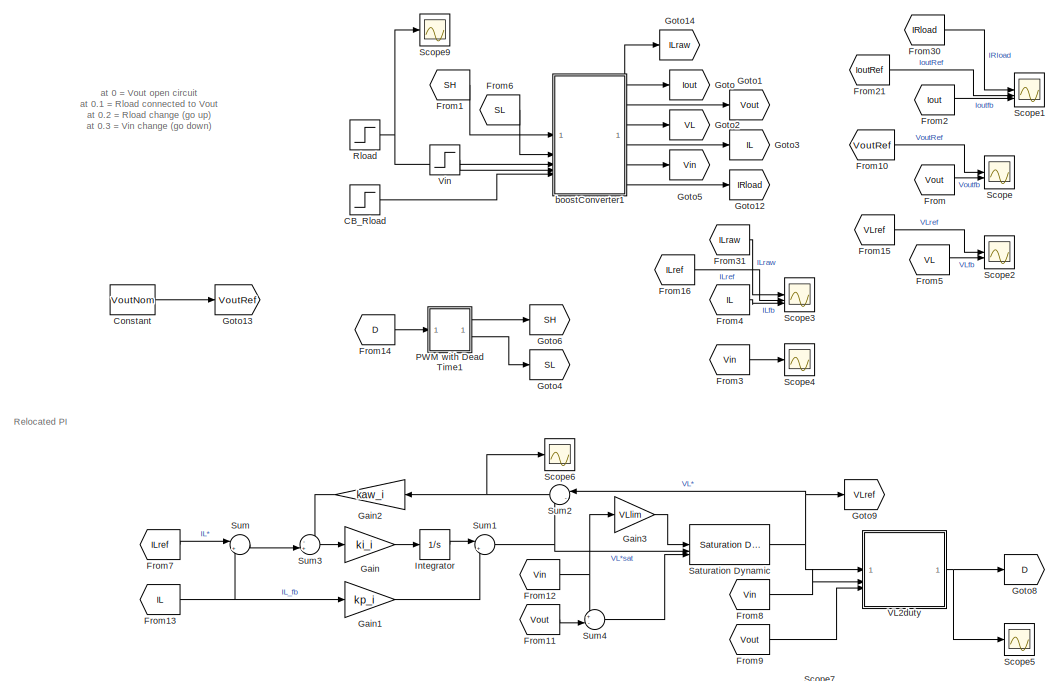
[diagram: root canvas - part 1/4, top left region]
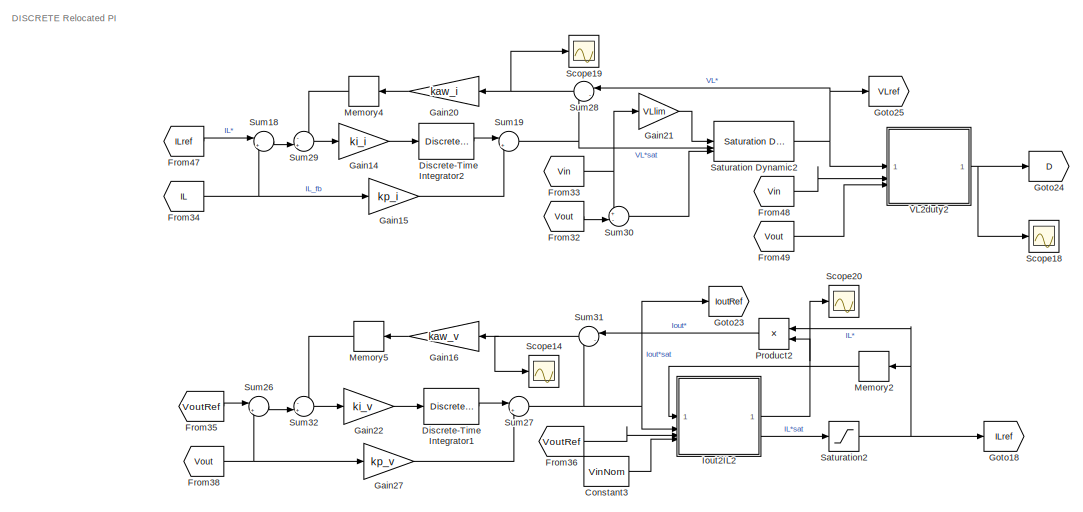
[diagram: root canvas - part 2/4, middle right region]
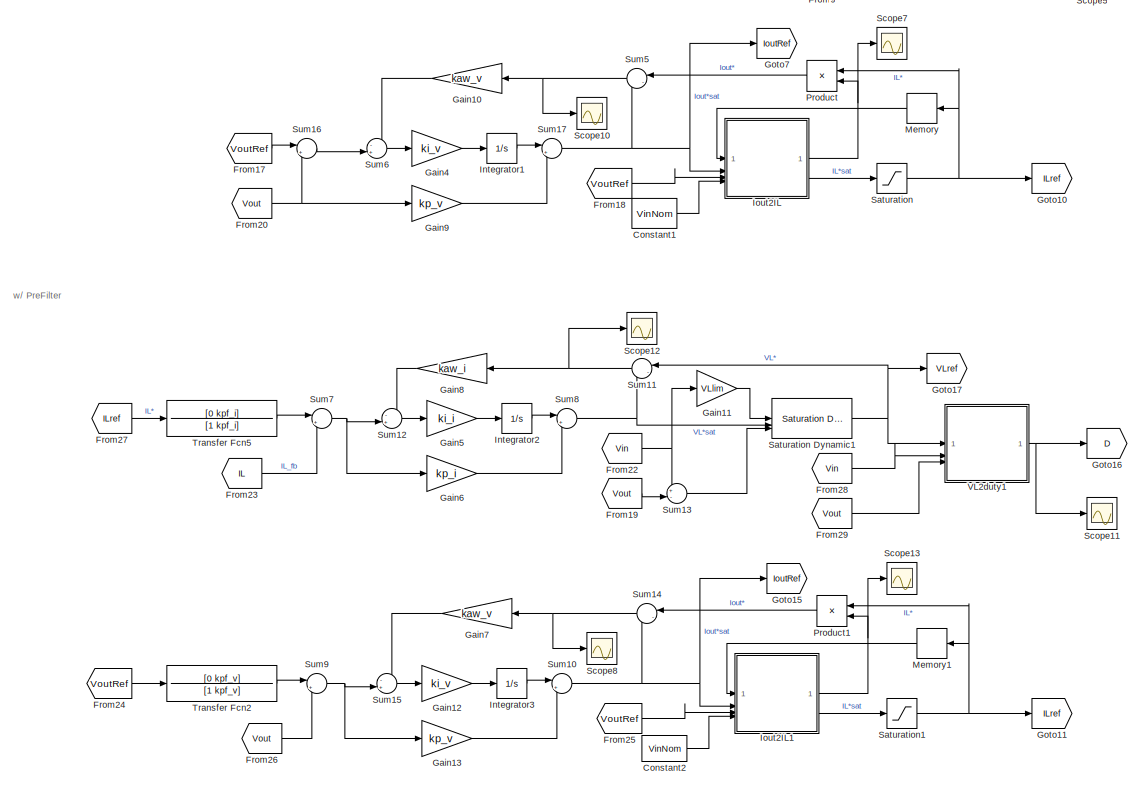
[diagram: root canvas - part 3/4, bottom left region]
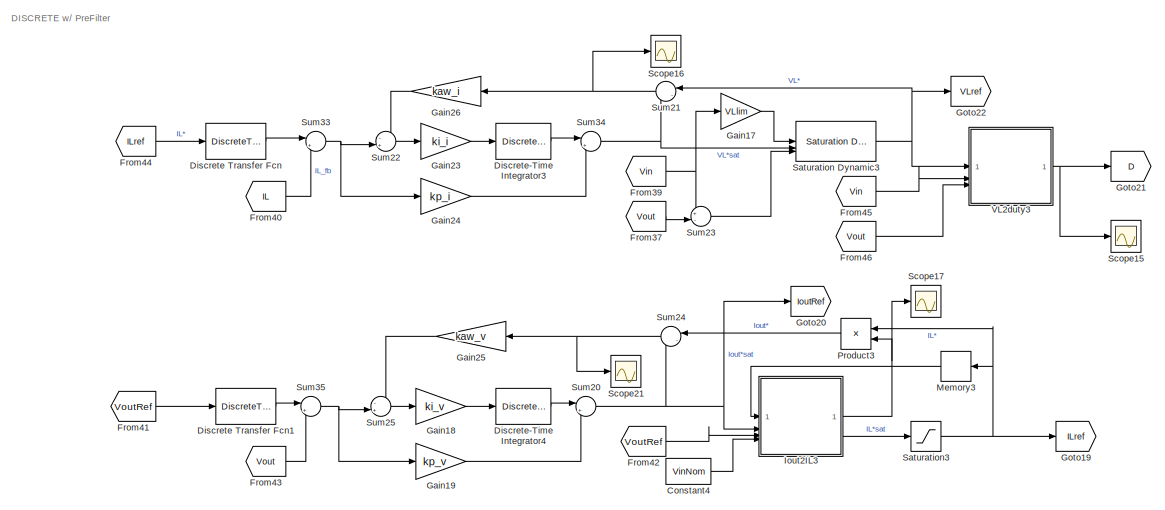
[diagram: root canvas - part 4/4, bottom right region]
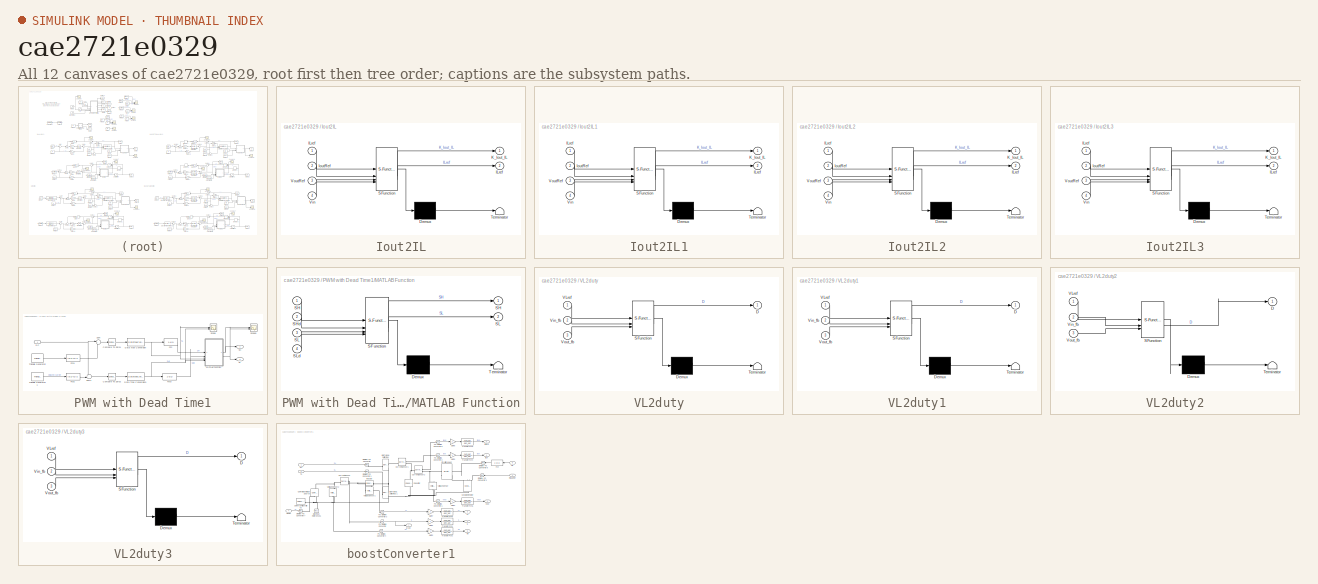
[diagram: thumbnail index - all 12 canvases of the model, root first then tree order]
MODEL slx_cae2721e0329
KIND model
CONFIG AbsTol = auto
CONFIG EnableMultiTasking = off
CONFIG FixedStep = Tstep
CONFIG MaxStep = auto
CONFIG MinStep = auto
CONFIG RelTol = 1e-3
CONFIG SampleTimeConstraint = Unconstrained
CONFIG SolverName = VariableStepAuto
CONFIG StartTime = 0.0
CONFIG StopTime = Tsim_outLoop
BLOCK [Step] CB_Rload
  SampleTime = 0
  Time = 0.1
BLOCK [Constant] Constant
  Value = VoutNom
BLOCK [Constant] Constant1
  Commented = on
  Value = VinNom
BLOCK [Constant] Constant2
  Commented = on
  Value = VinNom
BLOCK [Constant] Constant3
  Value = VinNom
BLOCK [Constant] Constant4
  Commented = on
  Value = VinNom
BLOCK [DiscreteTransferFcn] Discrete Transfer Fcn
  Commented = on
  Denominator = zden_pf_i
  InputPortMap = u0
  Numerator = znum_pf_i
BLOCK [DiscreteTransferFcn] Discrete Transfer Fcn1
  Commented = on
  Denominator = zden_pf_v
  InputPortMap = u0
  Numerator = znum_pf_v
BLOCK [DiscreteIntegrator] Discrete-Time Integrator1
  ICPrevOutput = DiscIntNeverNeededParam
  ICPrevScaledInput = DiscIntNeverNeededParam
  InitialConditionSetting = Auto
  IntegratorMethod = Integration: Trapezoidal
  SampleTime = Tsw
BLOCK [DiscreteIntegrator] Discrete-Time Integrator2
  ICPrevOutput = DiscIntNeverNeededParam
  ICPrevScaledInput = DiscIntNeverNeededParam
  InitialConditionSetting = Auto
  IntegratorMethod = Integration: Trapezoidal
  SampleTime = Tsw
BLOCK [DiscreteIntegrator] Discrete-Time Integrator3
  Commented = on
  ICPrevOutput = DiscIntNeverNeededParam
  ICPrevScaledInput = DiscIntNeverNeededParam
  InitialConditionSetting = Auto
  IntegratorMethod = Integration: Trapezoidal
  SampleTime = Tsw
BLOCK [DiscreteIntegrator] Discrete-Time Integrator4
  Commented = on
  ICPrevOutput = DiscIntNeverNeededParam
  ICPrevScaledInput = DiscIntNeverNeededParam
  InitialConditionSetting = Auto
  IntegratorMethod = Integration: Trapezoidal
  SampleTime = Tsw
BLOCK [From] From
  GotoTag = Vout
BLOCK [From] From1
  GotoTag = SH
BLOCK [From] From10
  GotoTag = VoutRef
BLOCK [From] From11
  Commented = on
  GotoTag = Vout
BLOCK [From] From12
  Commented = on
  GotoTag = Vin
BLOCK [From] From13
  Commented = on
  GotoTag = IL
BLOCK [From] From14
  GotoTag = D
BLOCK [From] From15
  GotoTag = VLref
BLOCK [From] From16
  GotoTag = ILref
BLOCK [From] From17
  Commented = on
  GotoTag = VoutRef
BLOCK [From] From18
  Commented = on
  GotoTag = VoutRef
BLOCK [From] From19
  Commented = on
  GotoTag = Vout
BLOCK [From] From2
  GotoTag = Iout
BLOCK [From] From20
  Commented = on
  GotoTag = Vout
BLOCK [From] From21
  GotoTag = IoutRef
BLOCK [From] From22
  Commented = on
  GotoTag = Vin
BLOCK [From] From23
  Commented = on
  GotoTag = IL
BLOCK [From] From24
  Commented = on
  GotoTag = VoutRef
BLOCK [From] From25
  Commented = on
  GotoTag = VoutRef
BLOCK [From] From26
  Commented = on
  GotoTag = Vout
BLOCK [From] From27
  Commented = on
  GotoTag = ILref
BLOCK [From] From28
  Commented = on
  GotoTag = Vin
BLOCK [From] From29
  Commented = on
  GotoTag = Vout
BLOCK [From] From3
  GotoTag = Vin
BLOCK [From] From30
  GotoTag = IRload
BLOCK [From] From31
  GotoTag = ILraw
BLOCK [From] From32
  GotoTag = Vout
BLOCK [From] From33
  GotoTag = Vin
BLOCK [From] From34
  GotoTag = IL
BLOCK [From] From35
  GotoTag = VoutRef
BLOCK [From] From36
  GotoTag = VoutRef
BLOCK [From] From37
  Commented = on
  GotoTag = Vout
BLOCK [From] From38
  GotoTag = Vout
BLOCK [From] From39
  Commented = on
  GotoTag = Vin
BLOCK [From] From4
  GotoTag = IL
BLOCK [From] From40
  Commented = on
  GotoTag = IL
BLOCK [From] From41
  Commented = on
  GotoTag = VoutRef
BLOCK [From] From42
  Commented = on
  GotoTag = VoutRef
BLOCK [From] From43
  Commented = on
  GotoTag = Vout
BLOCK [From] From44
  Commented = on
  GotoTag = ILref
BLOCK [From] From45
  Commented = on
  GotoTag = Vin
BLOCK [From] From46
  Commented = on
  GotoTag = Vout
BLOCK [From] From47
  GotoTag = ILref
BLOCK [From] From48
  GotoTag = Vin
BLOCK [From] From49
  GotoTag = Vout
BLOCK [From] From5
  GotoTag = VL
BLOCK [From] From6
  GotoTag = SL
BLOCK [From] From7
  Commented = on
  GotoTag = ILref
BLOCK [From] From8
  Commented = on
  GotoTag = Vin
BLOCK [From] From9
  Commented = on
  GotoTag = Vout
BLOCK [Gain] Gain
  Commented = on
  Gain = ki_i
BLOCK [Gain] Gain1
  Commented = on
  Gain = kp_i
BLOCK [Gain] Gain10
  Commented = on
  Gain = kaw_v
  NameLocation = top
BLOCK [Gain] Gain11
  Commented = on
  Gain = VLlim
BLOCK [Gain] Gain12
  Commented = on
  Gain = ki_v
BLOCK [Gain] Gain13
  Commented = on
  Gain = kp_v
BLOCK [Gain] Gain14
  Gain = ki_i
BLOCK [Gain] Gain15
  Gain = kp_i
BLOCK [Gain] Gain16
  Gain = kaw_v
  NameLocation = top
BLOCK [Gain] Gain17
  Commented = on
  Gain = VLlim
BLOCK [Gain] Gain18
  Commented = on
  Gain = ki_v
BLOCK [Gain] Gain19
  Commented = on
  Gain = kp_v
BLOCK [Gain] Gain2
  Commented = on
  Gain = kaw_i
  NameLocation = top
BLOCK [Gain] Gain20
  Gain = kaw_i
  NameLocation = top
BLOCK [Gain] Gain21
  Gain = VLlim
BLOCK [Gain] Gain22
  Gain = ki_v
BLOCK [Gain] Gain23
  Commented = on
  Gain = ki_i
BLOCK [Gain] Gain24
  Commented = on
  Gain = kp_i
BLOCK [Gain] Gain25
  Commented = on
  Gain = kaw_v
  NameLocation = top
BLOCK [Gain] Gain26
  Commented = on
  Gain = kaw_i
  NameLocation = top
BLOCK [Gain] Gain27
  Gain = kp_v
BLOCK [Gain] Gain3
  Commented = on
  Gain = VLlim
BLOCK [Gain] Gain4
  Commented = on
  Gain = ki_v
BLOCK [Gain] Gain5
  Commented = on
  Gain = ki_i
BLOCK [Gain] Gain6
  Commented = on
  Gain = kp_i
BLOCK [Gain] Gain7
  Commented = on
  Gain = kaw_v
  NameLocation = top
BLOCK [Gain] Gain8
  Commented = on
  Gain = kaw_i
  NameLocation = top
BLOCK [Gain] Gain9
  Commented = on
  Gain = kp_v
BLOCK [Goto] Goto
  GotoTag = Iout
BLOCK [Goto] Goto1
  GotoTag = Vout
BLOCK [Goto] Goto10
  Commented = on
  GotoTag = ILref
BLOCK [Goto] Goto11
  Commented = on
  GotoTag = ILref
BLOCK [Goto] Goto12
  GotoTag = IRload
BLOCK [Goto] Goto13
  GotoTag = VoutRef
BLOCK [Goto] Goto14
  GotoTag = ILraw
BLOCK [Goto] Goto15
  Commented = on
  GotoTag = IoutRef
BLOCK [Goto] Goto16
  Commented = on
  GotoTag = D
BLOCK [Goto] Goto17
  Commented = on
  GotoTag = VLref
BLOCK [Goto] Goto18
  GotoTag = ILref
BLOCK [Goto] Goto19
  Commented = on
  GotoTag = ILref
BLOCK [Goto] Goto2
  GotoTag = VL
BLOCK [Goto] Goto20
  Commented = on
  GotoTag = IoutRef
BLOCK [Goto] Goto21
  Commented = on
  GotoTag = D
BLOCK [Goto] Goto22
  Commented = on
  GotoTag = VLref
BLOCK [Goto] Goto23
  GotoTag = IoutRef
BLOCK [Goto] Goto24
  GotoTag = D
BLOCK [Goto] Goto25
  GotoTag = VLref
BLOCK [Goto] Goto3
  GotoTag = IL
BLOCK [Goto] Goto4
  GotoTag = SL
BLOCK [Goto] Goto5
  GotoTag = Vin
BLOCK [Goto] Goto6
  GotoTag = SH
BLOCK [Goto] Goto7
  Commented = on
  GotoTag = IoutRef
BLOCK [Goto] Goto8
  Commented = on
  GotoTag = D
BLOCK [Goto] Goto9
  Commented = on
  GotoTag = VLref
BLOCK [Integrator] Integrator
  Commented = on
BLOCK [Integrator] Integrator1
  Commented = on
BLOCK [Integrator] Integrator2
  Commented = on
BLOCK [Integrator] Integrator3
  Commented = on
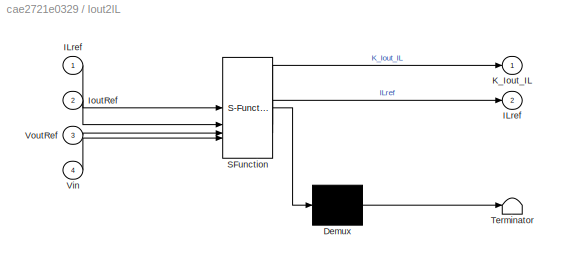
BLOCK [SubSystem] Iout2IL
  Commented = on
  ErrorFcn = Stateflow.Translate.translate
  PermitHierarchicalResolution = ExplicitOnly
  SFBlockType = MATLAB Function
  TreatAsAtomicUnit = on
BLOCK [Demux] Iout2IL/ Demux 
  Outputs = 1
BLOCK [S-Function] Iout2IL/ SFunction 
  EnableBusSupport = off
  FunctionName = sf_sfun
  Parameters = RserL
  PortCounts = [4 3]
  SFcnIsStateOwnerBlock = off
  SFunctionDeploymentMode = off
  Tag = Stateflow S-Function 3
BLOCK [Terminator] Iout2IL/ Terminator 
BLOCK [Outport] Iout2IL/ILref
  Port = 2
  VectorParamsAs1DForOutWhenUnconnected = off
BLOCK [Inport] Iout2IL/ILref 
BLOCK [Inport] Iout2IL/IoutRef
  Port = 2
BLOCK [Outport] Iout2IL/K_Iout_IL
  VectorParamsAs1DForOutWhenUnconnected = off
BLOCK [Inport] Iout2IL/Vin
  Port = 4
BLOCK [Inport] Iout2IL/VoutRef
  Port = 3
BLOCK [SubSystem] Iout2IL1
  Commented = on
  ErrorFcn = Stateflow.Translate.translate
  PermitHierarchicalResolution = ExplicitOnly
  SFBlockType = MATLAB Function
  TreatAsAtomicUnit = on
BLOCK [Demux] Iout2IL1/ Demux 
  Outputs = 1
BLOCK [S-Function] Iout2IL1/ SFunction 
  EnableBusSupport = on
  FunctionName = sf_sfun
  Parameters = RserL
  PortCounts = [4 3]
  SFcnIsStateOwnerBlock = off
  SFunctionDeploymentMode = off
  Tag = Stateflow S-Function 4
BLOCK [Terminator] Iout2IL1/ Terminator 
BLOCK [Outport] Iout2IL1/ILref
  Port = 2
  VectorParamsAs1DForOutWhenUnconnected = off
BLOCK [Inport] Iout2IL1/ILref 
BLOCK [Inport] Iout2IL1/IoutRef
  Port = 2
BLOCK [Outport] Iout2IL1/K_Iout_IL
  VectorParamsAs1DForOutWhenUnconnected = off
BLOCK [Inport] Iout2IL1/Vin
  Port = 4
BLOCK [Inport] Iout2IL1/VoutRef
  Port = 3
BLOCK [SubSystem] Iout2IL2
  ErrorFcn = Stateflow.Translate.translate
  PermitHierarchicalResolution = ExplicitOnly
  SFBlockType = MATLAB Function
  TreatAsAtomicUnit = on
BLOCK [Demux] Iout2IL2/ Demux 
  Outputs = 1
BLOCK [S-Function] Iout2IL2/ SFunction 
  EnableBusSupport = on
  FunctionName = sf_sfun
  Parameters = RserL
  PortCounts = [4 3]
  SFcnIsStateOwnerBlock = off
  SFunctionDeploymentMode = off
  Tag = Stateflow S-Function 6
BLOCK [Terminator] Iout2IL2/ Terminator 
BLOCK [Outport] Iout2IL2/ILref
  Port = 2
  VectorParamsAs1DForOutWhenUnconnected = off
BLOCK [Inport] Iout2IL2/ILref 
BLOCK [Inport] Iout2IL2/IoutRef
  Port = 2
BLOCK [Outport] Iout2IL2/K_Iout_IL
  VectorParamsAs1DForOutWhenUnconnected = off
BLOCK [Inport] Iout2IL2/Vin
  Port = 4
BLOCK [Inport] Iout2IL2/VoutRef
  Port = 3
BLOCK [SubSystem] Iout2IL3
  Commented = on
  ErrorFcn = Stateflow.Translate.translate
  PermitHierarchicalResolution = ExplicitOnly
  SFBlockType = MATLAB Function
  TreatAsAtomicUnit = on
BLOCK [Demux] Iout2IL3/ Demux 
  Outputs = 1
BLOCK [S-Function] Iout2IL3/ SFunction 
  EnableBusSupport = on
  FunctionName = sf_sfun
  Parameters = RserL
  PortCounts = [4 3]
  SFcnIsStateOwnerBlock = off
  SFunctionDeploymentMode = off
  Tag = Stateflow S-Function 7
BLOCK [Terminator] Iout2IL3/ Terminator 
BLOCK [Outport] Iout2IL3/ILref
  Port = 2
  VectorParamsAs1DForOutWhenUnconnected = off
BLOCK [Inport] Iout2IL3/ILref 
BLOCK [Inport] Iout2IL3/IoutRef
  Port = 2
BLOCK [Outport] Iout2IL3/K_Iout_IL
  VectorParamsAs1DForOutWhenUnconnected = off
BLOCK [Inport] Iout2IL3/Vin
  Port = 4
BLOCK [Inport] Iout2IL3/VoutRef
  Port = 3
BLOCK [Memory] Memory
  Commented = on
  NameLocation = top
BLOCK [Memory] Memory1
  Commented = on
  NameLocation = top
BLOCK [Memory] Memory2
  NameLocation = top
BLOCK [Memory] Memory3
  Commented = on
  NameLocation = top
BLOCK [Memory] Memory4
  NameLocation = top
BLOCK [Memory] Memory5
  NameLocation = top
BLOCK [SubSystem] PWM with Dead Time1
BLOCK [Reference] PWM with Dead Time1/Compare To Zero1  REF=simulink/Logic and Bit
Operations/Compare
To Zero
  SourceBlock = simulink/Logic and Bit\nOperations/Compare\nTo Zero
  SourceType = Compare To Zero
BLOCK [Reference] PWM with Dead Time1/Compare To Zero2  REF=simulink/Logic and Bit
Operations/Compare
To Zero
  SourceBlock = simulink/Logic and Bit\nOperations/Compare\nTo Zero
  SourceType = Compare To Zero
BLOCK [Inport] PWM with Dead Time1/DC
BLOCK [DataTypeConversion] PWM with Dead Time1/Data Type Conversion
  RndMeth = Floor
  SaturateOnIntegerOverflow = off
BLOCK [DataTypeConversion] PWM with Dead Time1/Data Type Conversion1
  RndMeth = Floor
  SaturateOnIntegerOverflow = off
BLOCK [Fcn] PWM with Dead Time1/Fcn
  Expr = 1-u(1)
BLOCK [Fcn] PWM with Dead Time1/Fcn1
  Expr = (u(1)+1)/2
BLOCK [Fcn] PWM with Dead Time1/Fcn2
  Expr = (u(1)+1)/2
BLOCK [Fcn] PWM with Dead Time1/Fcn3
  Expr = 1-u(1)
BLOCK [SubSystem] PWM with Dead Time1/MATLAB Function
  ErrorFcn = Stateflow.Translate.translate
  PermitHierarchicalResolution = ExplicitOnly
  SFBlockType = MATLAB Function
  TreatAsAtomicUnit = on
BLOCK [Demux] PWM with Dead Time1/MATLAB Function/ Demux 
  Outputs = 1
BLOCK [S-Function] PWM with Dead Time1/MATLAB Function/ SFunction 
  EnableBusSupport = on
  FunctionName = sf_sfun
  PortCounts = [4 3]
  SFcnIsStateOwnerBlock = off
  SFunctionDeploymentMode = off
  Tag = Stateflow S-Function 2
BLOCK [Terminator] PWM with Dead Time1/MATLAB Function/ Terminator 
BLOCK [Outport] PWM with Dead Time1/MATLAB Function/SH
BLOCK [Inport] PWM with Dead Time1/MATLAB Function/SH 
BLOCK [Inport] PWM with Dead Time1/MATLAB Function/SHd
  Port = 2
BLOCK [Outport] PWM with Dead Time1/MATLAB Function/SL
  Port = 2
BLOCK [Inport] PWM with Dead Time1/MATLAB Function/SL 
  Port = 3
BLOCK [Inport] PWM with Dead Time1/MATLAB Function/SLd
  Port = 4
BLOCK [Outport] PWM with Dead Time1/SH
BLOCK [Outport] PWM with Dead Time1/SL
  Port = 2
BLOCK [Scope] PWM with Dead Time1/Scope
  Floating = off
  NameLocation = left
  NumInputPorts = 2
  ScopeSpecificationString = Simulink.scopes.TimeScopeBlockCfg('CurrentConfiguration', extmgr.ConfigurationSet(extmgr.Configuration('Core','General UI',true),extmgr.Configuration('Core','Source UI',true),extmgr.Configuration('Sources','WiredSimulink',true,'DataLoggingVariableName','ScopeData1'),extmgr.Configuration('Visuals','Time Domain',true,'SerializedDisplays',{struct('MinYLimReal','-0.125','MaxYLimReal','1.125','YLabelRe...<+1399ch>
BLOCK [Scope] PWM with Dead Time1/Scope5
  Floating = off
  NumInputPorts = 2
  ScopeSpecificationString = Simulink.scopes.TimeScopeBlockCfg('CurrentConfiguration', extmgr.ConfigurationSet(extmgr.Configuration('Core','General UI',true),extmgr.Configuration('Core','Source UI',true),extmgr.Configuration('Sources','WiredSimulink',true,'DataLoggingVariableName','ScopeData1'),extmgr.Configuration('Visuals','Time Domain',true,'SerializedDisplays',{struct('MinYLimReal','-0.125','MaxYLimReal','1.125','YLabelRe...<+1482ch>
BLOCK [Sum] PWM with Dead Time1/Sum
  Inputs = |+-
BLOCK [Sum] PWM with Dead Time1/Sum1
  Inputs = +-|
BLOCK [Reference] PWM with Dead Time1/Triangle Generator  REF=spsTriangleGeneratorLib/Triangle
Generator
  LibrarySourceBlock = sps_lib/Sources/Signal Generator Sources/Triangle\nGenerator
  SourceBlock = spsTriangleGeneratorLib/Triangle\nGenerator
  SourceType = Triangle Generator
BLOCK [Reference] PWM with Dead Time1/Triangle Generator1  REF=spsTriangleGeneratorLib/Triangle
Generator
  LibrarySourceBlock = sps_lib/Sources/Signal Generator Sources/Triangle\nGenerator
  SourceBlock = spsTriangleGeneratorLib/Triangle\nGenerator
  SourceType = Triangle Generator
BLOCK [Product] Product
  Commented = on
  NameLocation = top
BLOCK [Product] Product1
  Commented = on
  NameLocation = top
BLOCK [Product] Product2
  NameLocation = top
BLOCK [Product] Product3
  Commented = on
  NameLocation = top
BLOCK [Step] Rload
  After = Rload*2
  Before = Rload
  SampleTime = 0
  Time = 0.2
BLOCK [Saturate] Saturation
  Commented = on
  LowerLimit = -ILmax
  UpperLimit = ILmax
BLOCK [Reference] Saturation Dynamic  REF=simulink/Discontinuities/Saturation
Dynamic
  Commented = on
  SourceBlock = simulink/Discontinuities/Saturation\nDynamic
  SourceType = Saturation Dynamic
BLOCK [Reference] Saturation Dynamic1  REF=simulink/Discontinuities/Saturation
Dynamic
  Commented = on
  SourceBlock = simulink/Discontinuities/Saturation\nDynamic
  SourceType = Saturation Dynamic
BLOCK [Reference] Saturation Dynamic2  REF=simulink/Discontinuities/Saturation
Dynamic
  SourceBlock = simulink/Discontinuities/Saturation\nDynamic
  SourceType = Saturation Dynamic
BLOCK [Reference] Saturation Dynamic3  REF=simulink/Discontinuities/Saturation
Dynamic
  Commented = on
  SourceBlock = simulink/Discontinuities/Saturation\nDynamic
  SourceType = Saturation Dynamic
BLOCK [Saturate] Saturation1
  Commented = on
  LowerLimit = -ILmax
  UpperLimit = ILmax
BLOCK [Saturate] Saturation2
  LowerLimit = -ILmax
  UpperLimit = ILmax
BLOCK [Saturate] Saturation3
  Commented = on
  LowerLimit = -ILmax
  UpperLimit = ILmax
BLOCK [Scope] Scope
  Floating = off
  NumInputPorts = 2
  ScopeSpecificationString = Simulink.scopes.TimeScopeBlockCfg('CurrentConfiguration', extmgr.ConfigurationSet(extmgr.Configuration('Core','General UI',true),extmgr.Configuration('Core','Source UI',true),extmgr.Configuration('Sources','WiredSimulink',true),extmgr.Configuration('Visuals','Time Domain',true,'SerializedDisplays',{struct('MinYLimReal','-7.11443','MaxYLimReal','64.02988','YLabelReal','','MinYLimMag','0.00000','Max...<+1498ch>
BLOCK [Scope] Scope1
  Floating = off
  NumInputPorts = 3
  ScopeSpecificationString = Simulink.scopes.TimeScopeBlockCfg('CurrentConfiguration', extmgr.ConfigurationSet(extmgr.Configuration('Core','General UI',true),extmgr.Configuration('Core','Source UI',true),extmgr.Configuration('Sources','WiredSimulink',true,'DataLoggingVariableName','ScopeData1'),extmgr.Configuration('Visuals','Time Domain',true,'SerializedDisplays',{struct('MinYLimReal','1.46411','MaxYLimReal','1.55327','YLabe...<+1540ch>
BLOCK [Scope] Scope10
  Commented = on
  Floating = off
  NumInputPorts = 1
  ScopeSpecificationString = Simulink.scopes.TimeScopeBlockCfg('CurrentConfiguration', extmgr.ConfigurationSet(extmgr.Configuration('Core','General UI',true),extmgr.Configuration('Core','Source UI',true),extmgr.Configuration('Sources','WiredSimulink',true,'DataLoggingVariableName','ScopeData4'),extmgr.Configuration('Visuals','Time Domain',true,'SerializedDisplays',{struct('MinYLimReal','-0.0000000000000011','MaxYLimReal','0.0...<+1570ch>
BLOCK [Scope] Scope11
  Commented = on
  Floating = off
  NumInputPorts = 1
  ScopeSpecificationString = Simulink.scopes.TimeScopeBlockCfg('CurrentConfiguration', extmgr.ConfigurationSet(extmgr.Configuration('Core','General UI',true),extmgr.Configuration('Core','Source UI',true),extmgr.Configuration('Sources','WiredSimulink',true,'DataLoggingVariableName','ScopeData1'),extmgr.Configuration('Visuals','Time Domain',true,'SerializedDisplays',{struct('MinYLimReal','-0.05602','MaxYLimReal','0.50414','YLab...<+1392ch>
BLOCK [Scope] Scope12
  Commented = on
  Floating = off
  NumInputPorts = 1
  ScopeSpecificationString = Simulink.scopes.TimeScopeBlockCfg('CurrentConfiguration', extmgr.ConfigurationSet(extmgr.Configuration('Core','General UI',true),extmgr.Configuration('Core','Source UI',true),extmgr.Configuration('Sources','WiredSimulink',true,'DataLoggingVariableName','ScopeData2'),extmgr.Configuration('Visuals','Time Domain',true,'SerializedDisplays',{struct('MinYLimReal','-0.00687','MaxYLimReal','0.06186','YLab...<+1363ch>
BLOCK [Scope] Scope13
  Commented = on
  Floating = off
  NumInputPorts = 1
  ScopeSpecificationString = Simulink.scopes.TimeScopeBlockCfg('CurrentConfiguration', extmgr.ConfigurationSet(extmgr.Configuration('Core','General UI',true),extmgr.Configuration('Core','Source UI',true),extmgr.Configuration('Sources','WiredSimulink',true,'DataLoggingVariableName','ScopeData3'),extmgr.Configuration('Visuals','Time Domain',true,'SerializedDisplays',{struct('MinYLimReal','1.04374','MaxYLimReal','1.64016','YLabe...<+1374ch>
BLOCK [Scope] Scope14
  Floating = off
  NumInputPorts = 1
  ScopeSpecificationString = Simulink.scopes.TimeScopeBlockCfg('CurrentConfiguration', extmgr.ConfigurationSet(extmgr.Configuration('Core','General UI',true),extmgr.Configuration('Core','Source UI',true),extmgr.Configuration('Sources','WiredSimulink',true,'DataLoggingVariableName','ScopeData1'),extmgr.Configuration('Visuals','Time Domain',true,'SerializedDisplays',{struct('MinYLimReal','-0.0000000000000011','MaxYLimReal','0.0...<+1570ch>
BLOCK [Scope] Scope15
  Commented = on
  Floating = off
  NumInputPorts = 1
  ScopeSpecificationString = Simulink.scopes.TimeScopeBlockCfg('CurrentConfiguration', extmgr.ConfigurationSet(extmgr.Configuration('Core','General UI',true),extmgr.Configuration('Core','Source UI',true),extmgr.Configuration('Sources','WiredSimulink',true,'DataLoggingVariableName','ScopeData2'),extmgr.Configuration('Visuals','Time Domain',true,'SerializedDisplays',{struct('MinYLimReal','-0.05602','MaxYLimReal','0.50414','YLab...<+1392ch>
BLOCK [Scope] Scope16
  Commented = on
  Floating = off
  NumInputPorts = 1
  ScopeSpecificationString = Simulink.scopes.TimeScopeBlockCfg('CurrentConfiguration', extmgr.ConfigurationSet(extmgr.Configuration('Core','General UI',true),extmgr.Configuration('Core','Source UI',true),extmgr.Configuration('Sources','WiredSimulink',true,'DataLoggingVariableName','ScopeData3'),extmgr.Configuration('Visuals','Time Domain',true,'SerializedDisplays',{struct('MinYLimReal','-0.00687','MaxYLimReal','0.06186','YLab...<+1363ch>
BLOCK [Scope] Scope17
  Commented = on
  Floating = off
  NumInputPorts = 1
  ScopeSpecificationString = Simulink.scopes.TimeScopeBlockCfg('CurrentConfiguration', extmgr.ConfigurationSet(extmgr.Configuration('Core','General UI',true),extmgr.Configuration('Core','Source UI',true),extmgr.Configuration('Sources','WiredSimulink',true,'DataLoggingVariableName','ScopeData4'),extmgr.Configuration('Visuals','Time Domain',true,'SerializedDisplays',{struct('MinYLimReal','1.04374','MaxYLimReal','1.64016','YLabe...<+1374ch>
BLOCK [Scope] Scope18
  Floating = off
  NumInputPorts = 1
  ScopeSpecificationString = Simulink.scopes.TimeScopeBlockCfg('CurrentConfiguration', extmgr.ConfigurationSet(extmgr.Configuration('Core','General UI',true),extmgr.Configuration('Core','Source UI',true),extmgr.Configuration('Sources','WiredSimulink',true,'DataLoggingVariableName','ScopeData5'),extmgr.Configuration('Visuals','Time Domain',true,'SerializedDisplays',{struct('MinYLimReal','-0.09281','MaxYLimReal','0.83526','YLab...<+1392ch>
BLOCK [Scope] Scope19
  Floating = off
  NumInputPorts = 1
  ScopeSpecificationString = Simulink.scopes.TimeScopeBlockCfg('CurrentConfiguration', extmgr.ConfigurationSet(extmgr.Configuration('Core','General UI',true),extmgr.Configuration('Core','Source UI',true),extmgr.Configuration('Sources','WiredSimulink',true,'DataLoggingVariableName','ScopeData6'),extmgr.Configuration('Visuals','Time Domain',true,'SerializedDisplays',{struct('MinYLimReal','-0.00687','MaxYLimReal','0.06186','YLab...<+1363ch>
BLOCK [Scope] Scope2
  Floating = off
  NumInputPorts = 2
  ScopeSpecificationString = Simulink.scopes.TimeScopeBlockCfg('CurrentConfiguration', extmgr.ConfigurationSet(extmgr.Configuration('Core','General UI',true),extmgr.Configuration('Core','Source UI',true),extmgr.Configuration('Sources','WiredSimulink',true,'DataLoggingVariableName','ScopeData2'),extmgr.Configuration('Visuals','Time Domain',true,'SerializedDisplays',{struct('MinYLimReal','-8.09908','MaxYLimReal','5.80144','YLab...<+1460ch>
BLOCK [Scope] Scope20
  Floating = off
  NumInputPorts = 1
  ScopeSpecificationString = Simulink.scopes.TimeScopeBlockCfg('CurrentConfiguration', extmgr.ConfigurationSet(extmgr.Configuration('Core','General UI',true),extmgr.Configuration('Core','Source UI',true),extmgr.Configuration('Sources','WiredSimulink',true,'DataLoggingVariableName','ScopeData7'),extmgr.Configuration('Visuals','Time Domain',true,'SerializedDisplays',{struct('MinYLimReal','1.04374','MaxYLimReal','1.64016','YLabe...<+1374ch>
BLOCK [Scope] Scope21
  Commented = on
  Floating = off
  NumInputPorts = 1
  ScopeSpecificationString = Simulink.scopes.TimeScopeBlockCfg('CurrentConfiguration', extmgr.ConfigurationSet(extmgr.Configuration('Core','General UI',true),extmgr.Configuration('Core','Source UI',true),extmgr.Configuration('Sources','WiredSimulink',true,'DataLoggingVariableName','ScopeData8'),extmgr.Configuration('Visuals','Time Domain',true,'SerializedDisplays',{struct('MinYLimReal','-0.0000000000000011','MaxYLimReal','0.0...<+1570ch>
BLOCK [Scope] Scope3
  Floating = off
  NumInputPorts = 3
  ScopeSpecificationString = Simulink.scopes.TimeScopeBlockCfg('CurrentConfiguration', extmgr.ConfigurationSet(extmgr.Configuration('Core','General UI',true),extmgr.Configuration('Core','Source UI',true),extmgr.Configuration('Sources','WiredSimulink',true,'DataLoggingVariableName','ScopeData3'),extmgr.Configuration('Visuals','Time Domain',true,'SerializedDisplays',{struct('MinYLimReal','4.74063','MaxYLimReal','5.63244','YLabe...<+1489ch>
BLOCK [Scope] Scope4
  Floating = off
  NumInputPorts = 1
  ScopeSpecificationString = Simulink.scopes.TimeScopeBlockCfg('CurrentConfiguration', extmgr.ConfigurationSet(extmgr.Configuration('Core','General UI',true),extmgr.Configuration('Core','Source UI',true),extmgr.Configuration('Sources','WiredSimulink',true,'DataLoggingVariableName','ScopeData4'),extmgr.Configuration('Visuals','Time Domain',true,'SerializedDisplays',{struct('MinYLimReal','-46.98204','MaxYLimReal','422.83838','Y...<+1374ch>
BLOCK [Scope] Scope5
  Commented = on
  Floating = off
  NumInputPorts = 1
  ScopeSpecificationString = Simulink.scopes.TimeScopeBlockCfg('CurrentConfiguration', extmgr.ConfigurationSet(extmgr.Configuration('Core','General UI',true),extmgr.Configuration('Core','Source UI',true),extmgr.Configuration('Sources','WiredSimulink',true,'DataLoggingVariableName','ScopeData2'),extmgr.Configuration('Visuals','Time Domain',true,'SerializedDisplays',{struct('MinYLimReal','-0.09281','MaxYLimReal','0.83526','YLab...<+1392ch>
BLOCK [Scope] Scope6
  Commented = on
  Floating = off
  NumInputPorts = 1
  ScopeSpecificationString = Simulink.scopes.TimeScopeBlockCfg('CurrentConfiguration', extmgr.ConfigurationSet(extmgr.Configuration('Core','General UI',true),extmgr.Configuration('Core','Source UI',true),extmgr.Configuration('Sources','WiredSimulink',true,'DataLoggingVariableName','ScopeData1'),extmgr.Configuration('Visuals','Time Domain',true,'SerializedDisplays',{struct('MinYLimReal','-0.00687','MaxYLimReal','0.06186','YLab...<+1363ch>
BLOCK [Scope] Scope7
  Commented = on
  Floating = off
  NumInputPorts = 1
  ScopeSpecificationString = Simulink.scopes.TimeScopeBlockCfg('CurrentConfiguration', extmgr.ConfigurationSet(extmgr.Configuration('Core','General UI',true),extmgr.Configuration('Core','Source UI',true),extmgr.Configuration('Sources','WiredSimulink',true,'DataLoggingVariableName','ScopeData3'),extmgr.Configuration('Visuals','Time Domain',true,'SerializedDisplays',{struct('MinYLimReal','1.04374','MaxYLimReal','1.64016','YLabe...<+1374ch>
BLOCK [Scope] Scope8
  Commented = on
  Floating = off
  NumInputPorts = 1
  ScopeSpecificationString = Simulink.scopes.TimeScopeBlockCfg('CurrentConfiguration', extmgr.ConfigurationSet(extmgr.Configuration('Core','General UI',true),extmgr.Configuration('Core','Source UI',true),extmgr.Configuration('Sources','WiredSimulink',true,'DataLoggingVariableName','ScopeData4'),extmgr.Configuration('Visuals','Time Domain',true,'SerializedDisplays',{struct('MinYLimReal','-0.0000000000000011','MaxYLimReal','0.0...<+1570ch>
BLOCK [Scope] Scope9
  Floating = off
  NumInputPorts = 1
  ScopeSpecificationString = Simulink.scopes.TimeScopeBlockCfg('CurrentConfiguration', extmgr.ConfigurationSet(extmgr.Configuration('Core','General UI',true),extmgr.Configuration('Core','Source UI',true),extmgr.Configuration('Sources','WiredSimulink',true,'DataLoggingVariableName','ScopeData2'),extmgr.Configuration('Visuals','Time Domain',true,'SerializedDisplays',{struct('MinYLimReal','93.16406','MaxYLimReal','145.89844','YL...<+1374ch>
BLOCK [Sum] Sum
  Commented = on
  Inputs = |+-
BLOCK [Sum] Sum1
  Commented = on
  Inputs = |+-
BLOCK [Sum] Sum10
  Commented = on
  Inputs = |++
BLOCK [Sum] Sum11
  Commented = on
  Inputs = |-+
  NameLocation = top
BLOCK [Sum] Sum12
  Commented = on
  Inputs = -+|
BLOCK [Sum] Sum13
  Commented = on
  Inputs = +-|
BLOCK [Sum] Sum14
  Commented = on
  Inputs = |-+
  NameLocation = top
BLOCK [Sum] Sum15
  Commented = on
  Inputs = -+|
BLOCK [Sum] Sum16
  Commented = on
  Inputs = |+-
BLOCK [Sum] Sum17
  Commented = on
  Inputs = |+-
BLOCK [Sum] Sum18
  Inputs = |+-
BLOCK [Sum] Sum19
  Inputs = |+-
BLOCK [Sum] Sum2
  Commented = on
  Inputs = |-+
  NameLocation = top
BLOCK [Sum] Sum20
  Commented = on
  Inputs = |++
BLOCK [Sum] Sum21
  Commented = on
  Inputs = |-+
  NameLocation = top
BLOCK [Sum] Sum22
  Commented = on
  Inputs = -+|
BLOCK [Sum] Sum23
  Commented = on
  Inputs = +-|
BLOCK [Sum] Sum24
  Commented = on
  Inputs = |-+
  NameLocation = top
BLOCK [Sum] Sum25
  Commented = on
  Inputs = -+|
BLOCK [Sum] Sum26
  Inputs = |+-
BLOCK [Sum] Sum27
  Inputs = |+-
BLOCK [Sum] Sum28
  Inputs = |-+
  NameLocation = top
BLOCK [Sum] Sum29
  Inputs = -+|
BLOCK [Sum] Sum3
  Commented = on
  Inputs = -+|
BLOCK [Sum] Sum30
  Inputs = +-|
BLOCK [Sum] Sum31
  Inputs = |-+
  NameLocation = top
BLOCK [Sum] Sum32
  Inputs = -+|
BLOCK [Sum] Sum33
  Commented = on
  Inputs = |+-
BLOCK [Sum] Sum34
  Commented = on
  Inputs = |++
BLOCK [Sum] Sum35
  Commented = on
  Inputs = |+-
BLOCK [Sum] Sum4
  Commented = on
  Inputs = +-|
BLOCK [Sum] Sum5
  Commented = on
  Inputs = |-+
  NameLocation = top
BLOCK [Sum] Sum6
  Commented = on
  Inputs = -+|
BLOCK [Sum] Sum7
  Commented = on
  Inputs = |+-
BLOCK [Sum] Sum8
  Commented = on
  Inputs = |++
BLOCK [Sum] Sum9
  Commented = on
  Inputs = |+-
BLOCK [TransferFcn] Transfer Fcn2
  Commented = on
  Denominator = [1 kpf_v]
  Numerator = [0 kpf_v]
BLOCK [TransferFcn] Transfer Fcn5
  Commented = on
  Denominator = [1 kpf_i]
  Numerator = [0 kpf_i]
BLOCK [SubSystem] VL2duty
  Commented = on
  ErrorFcn = Stateflow.Translate.translate
  PermitHierarchicalResolution = ExplicitOnly
  SFBlockType = MATLAB Function
  TreatAsAtomicUnit = on
BLOCK [Demux] VL2duty/ Demux 
  Outputs = 1
BLOCK [S-Function] VL2duty/ SFunction 
  EnableBusSupport = off
  FunctionName = sf_sfun
  PortCounts = [3 2]
  SFcnIsStateOwnerBlock = off
  SFunctionDeploymentMode = off
  Tag = Stateflow S-Function 1
BLOCK [Terminator] VL2duty/ Terminator 
BLOCK [Outport] VL2duty/D
  VectorParamsAs1DForOutWhenUnconnected = off
BLOCK [Inport] VL2duty/VLref
BLOCK [Inport] VL2duty/Vin_fb
  Port = 2
BLOCK [Inport] VL2duty/Vout_fb
  Port = 3
BLOCK [SubSystem] VL2duty1
  Commented = on
  ErrorFcn = Stateflow.Translate.translate
  PermitHierarchicalResolution = ExplicitOnly
  SFBlockType = MATLAB Function
  TreatAsAtomicUnit = on
BLOCK [Demux] VL2duty1/ Demux 
  Outputs = 1
BLOCK [S-Function] VL2duty1/ SFunction 
  EnableBusSupport = on
  FunctionName = sf_sfun
  PortCounts = [3 2]
  SFcnIsStateOwnerBlock = off
  SFunctionDeploymentMode = off
  Tag = Stateflow S-Function 5
BLOCK [Terminator] VL2duty1/ Terminator 
BLOCK [Outport] VL2duty1/D
  VectorParamsAs1DForOutWhenUnconnected = off
BLOCK [Inport] VL2duty1/VLref
BLOCK [Inport] VL2duty1/Vin_fb
  Port = 2
BLOCK [Inport] VL2duty1/Vout_fb
  Port = 3
BLOCK [SubSystem] VL2duty2
  ErrorFcn = Stateflow.Translate.translate
  PermitHierarchicalResolution = ExplicitOnly
  SFBlockType = MATLAB Function
  TreatAsAtomicUnit = on
BLOCK [Demux] VL2duty2/ Demux 
  Outputs = 1
BLOCK [S-Function] VL2duty2/ SFunction 
  EnableBusSupport = on
  FunctionName = sf_sfun
  PortCounts = [3 2]
  SFcnIsStateOwnerBlock = off
  SFunctionDeploymentMode = off
  Tag = Stateflow S-Function 8
BLOCK [Terminator] VL2duty2/ Terminator 
BLOCK [Outport] VL2duty2/D
  VectorParamsAs1DForOutWhenUnconnected = off
BLOCK [Inport] VL2duty2/VLref
BLOCK [Inport] VL2duty2/Vin_fb
  Port = 2
BLOCK [Inport] VL2duty2/Vout_fb
  Port = 3
BLOCK [SubSystem] VL2duty3
  Commented = on
  ErrorFcn = Stateflow.Translate.translate
  PermitHierarchicalResolution = ExplicitOnly
  SFBlockType = MATLAB Function
  TreatAsAtomicUnit = on
BLOCK [Demux] VL2duty3/ Demux 
  Outputs = 1
BLOCK [S-Function] VL2duty3/ SFunction 
  EnableBusSupport = on
  FunctionName = sf_sfun
  PortCounts = [3 2]
  SFcnIsStateOwnerBlock = off
  SFunctionDeploymentMode = off
  Tag = Stateflow S-Function 9
BLOCK [Terminator] VL2duty3/ Terminator 
BLOCK [Outport] VL2duty3/D
  VectorParamsAs1DForOutWhenUnconnected = off
BLOCK [Inport] VL2duty3/VLref
BLOCK [Inport] VL2duty3/Vin_fb
  Port = 2
BLOCK [Inport] VL2duty3/Vout_fb
  Port = 3
BLOCK [Step] Vin
  After = 20
  Before = VinNom
  SampleTime = 0
  Time = 0.3
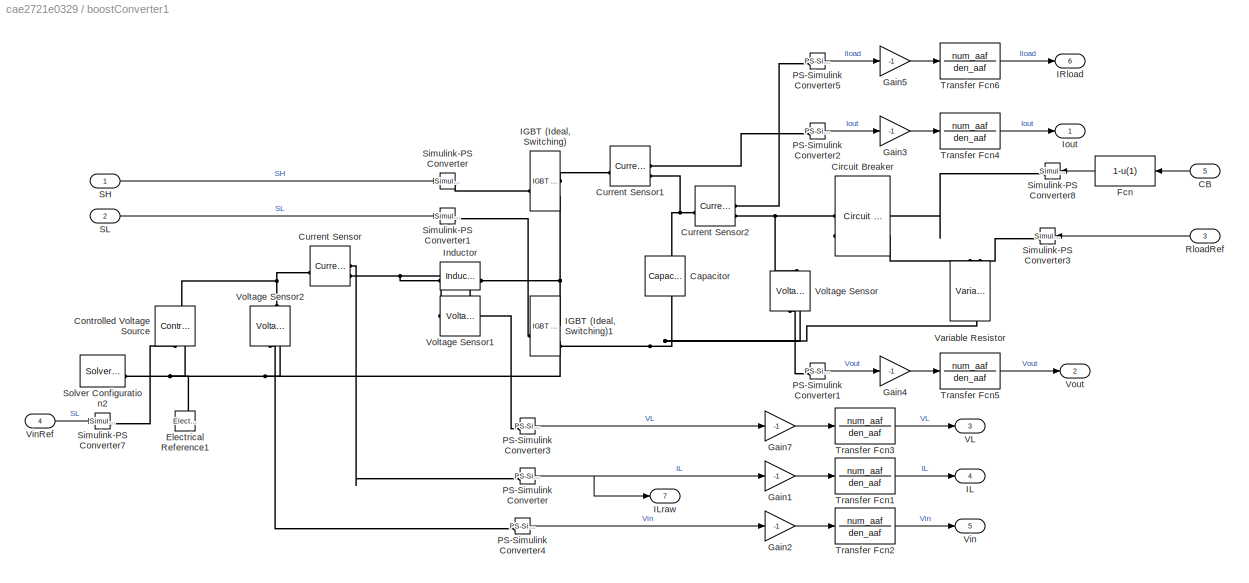
BLOCK [SubSystem] boostConverter1
  PortSchema = {"entries":[{"content":{"sides":[{"content":{"connectorIds":["In1","In2","In3","In4","In5"]},"type":"ConnectorPlacement.EquallySpacedRectSide","uuid":"06a7732a-1944-48bb-a78f-c13d5f08aafd"},{"content":{"connectorIds":["Out1","Out2","Out3","Out4","Out5","Out6"],"side":"RIGHT"},"type":"ConnectorPlacement.EquallySpacedRectSide","uuid":"b6473c2d-6993-432c-a609-70fa8f5d2a01"},{"content":{"connectorIds"...<+305ch>
BLOCK [Inport] boostConverter1/CB
  Port = 5
BLOCK [Reference] boostConverter1/Capacitor  REF=fl_lib/Electrical/Electrical Elements/Capacitor
  NameLocation = left
  SourceBlock = fl_lib/Electrical/Electrical Elements/Capacitor
  SourceType = Capacitor
BLOCK [Reference] boostConverter1/Circuit Breaker  REF=ee_lib/Switches & Breakers/Circuit Breaker
  NameLocation = top
  SourceBlock = ee_lib/Switches & Breakers/Circuit Breaker
  SourceType = Circuit Breaker
BLOCK [Reference] boostConverter1/Controlled Voltage Source  REF=fl_lib/Electrical/Electrical Sources/Controlled Voltage
Source
  NameLocation = right
  SourceBlock = fl_lib/Electrical/Electrical Sources/Controlled Voltage\nSource
  SourceType = Controlled Voltage\nSource
BLOCK [Reference] boostConverter1/Current Sensor  REF=fl_lib/Electrical/Electrical Sensors/Current Sensor
  LibrarySourceBlock = ee_lib/Sensors &\nTransducers/Current Sensor
  SourceBlock = fl_lib/Electrical/Electrical Sensors/Current Sensor
  SourceType = Current Sensor
BLOCK [Reference] boostConverter1/Current Sensor1  REF=fl_lib/Electrical/Electrical Sensors/Current Sensor
  LibrarySourceBlock = ee_lib/Sensors &\nTransducers/Current Sensor
  SourceBlock = fl_lib/Electrical/Electrical Sensors/Current Sensor
  SourceType = Current Sensor
BLOCK [Reference] boostConverter1/Current Sensor2  REF=fl_lib/Electrical/Electrical Sensors/Current Sensor
  LibrarySourceBlock = ee_lib/Sensors &\nTransducers/Current Sensor
  SourceBlock = fl_lib/Electrical/Electrical Sensors/Current Sensor
  SourceType = Current Sensor
BLOCK [Reference] boostConverter1/Electrical Reference1  REF=fl_lib/Electrical/Electrical Elements/Electrical Reference
  NameLocation = right
  SourceBlock = fl_lib/Electrical/Electrical Elements/Electrical Reference
  SourceType = Electrical Reference
BLOCK [Fcn] boostConverter1/Fcn
  Expr = 1-u(1)
  NameLocation = top
BLOCK [Gain] boostConverter1/Gain1
  Gain = -1
BLOCK [Gain] boostConverter1/Gain2
  Gain = -1
BLOCK [Gain] boostConverter1/Gain3
  Gain = -1
BLOCK [Gain] boostConverter1/Gain4
  Gain = -1
BLOCK [Gain] boostConverter1/Gain5
  Gain = -1
BLOCK [Gain] boostConverter1/Gain7
  Gain = -1
BLOCK [Reference] boostConverter1/IGBT (Ideal, Switching)  REF=ee_lib/Semiconductors &
Converters/IGBT
(Ideal,
Switching)
  SourceBlock = ee_lib/Semiconductors &\nConverters/IGBT\n(Ideal,\nSwitching)
  SourceType = IGBT\n(Ideal,\nSwitching)
BLOCK [Reference] boostConverter1/IGBT (Ideal, Switching)1  REF=ee_lib/Semiconductors &
Converters/IGBT
(Ideal,
Switching)
  SourceBlock = ee_lib/Semiconductors &\nConverters/IGBT\n(Ideal,\nSwitching)
  SourceType = IGBT\n(Ideal,\nSwitching)
BLOCK [Outport] boostConverter1/IL
  Port = 4
BLOCK [Outport] boostConverter1/ILraw
  Port = 7
BLOCK [Outport] boostConverter1/IRload
  Port = 6
BLOCK [Reference] boostConverter1/Inductor  REF=fl_lib/Electrical/Electrical Elements/Inductor
  SourceBlock = fl_lib/Electrical/Electrical Elements/Inductor
  SourceType = Inductor
BLOCK [Outport] boostConverter1/Iout
BLOCK [Reference] boostConverter1/PS-Simulink Converter  REF=nesl_utility/PS-Simulink
Converter
  SourceBlock = nesl_utility/PS-Simulink\nConverter
  SourceType = PS-Simulink\nConverter
BLOCK [Reference] boostConverter1/PS-Simulink Converter1  REF=nesl_utility/PS-Simulink
Converter
  SourceBlock = nesl_utility/PS-Simulink\nConverter
  SourceType = PS-Simulink\nConverter
BLOCK [Reference] boostConverter1/PS-Simulink Converter2  REF=nesl_utility/PS-Simulink
Converter
  SourceBlock = nesl_utility/PS-Simulink\nConverter
  SourceType = PS-Simulink\nConverter
BLOCK [Reference] boostConverter1/PS-Simulink Converter3  REF=nesl_utility/PS-Simulink
Converter
  SourceBlock = nesl_utility/PS-Simulink\nConverter
  SourceType = PS-Simulink\nConverter
BLOCK [Reference] boostConverter1/PS-Simulink Converter4  REF=nesl_utility/PS-Simulink
Converter
  SourceBlock = nesl_utility/PS-Simulink\nConverter
  SourceType = PS-Simulink\nConverter
BLOCK [Reference] boostConverter1/PS-Simulink Converter5  REF=nesl_utility/PS-Simulink
Converter
  SourceBlock = nesl_utility/PS-Simulink\nConverter
  SourceType = PS-Simulink\nConverter
BLOCK [Inport] boostConverter1/RloadRef
  Port = 3
BLOCK [Inport] boostConverter1/SH
BLOCK [Inport] boostConverter1/SL
  Port = 2
BLOCK [Reference] boostConverter1/Simulink-PS Converter  REF=nesl_utility/Simulink-PS
Converter
  SourceBlock = nesl_utility/Simulink-PS\nConverter
  SourceType = Simulink-PS\nConverter
BLOCK [Reference] boostConverter1/Simulink-PS Converter1  REF=nesl_utility/Simulink-PS
Converter
  SourceBlock = nesl_utility/Simulink-PS\nConverter
  SourceType = Simulink-PS\nConverter
BLOCK [Reference] boostConverter1/Simulink-PS Converter3  REF=nesl_utility/Simulink-PS
Converter
  SourceBlock = nesl_utility/Simulink-PS\nConverter
  SourceType = Simulink-PS\nConverter
BLOCK [Reference] boostConverter1/Simulink-PS Converter7  REF=nesl_utility/Simulink-PS
Converter
  SourceBlock = nesl_utility/Simulink-PS\nConverter
  SourceType = Simulink-PS\nConverter
BLOCK [Reference] boostConverter1/Simulink-PS Converter8  REF=nesl_utility/Simulink-PS
Converter
  SourceBlock = nesl_utility/Simulink-PS\nConverter
  SourceType = Simulink-PS\nConverter
BLOCK [Reference] boostConverter1/Solver Configuration2  REF=nesl_utility/Solver
Configuration
  SourceBlock = nesl_utility/Solver\nConfiguration
  SourceType = Solver\nConfiguration
BLOCK [TransferFcn] boostConverter1/Transfer Fcn1
  Denominator = den_aaf
  Numerator = num_aaf
BLOCK [TransferFcn] boostConverter1/Transfer Fcn2
  Denominator = den_aaf
  Numerator = num_aaf
BLOCK [TransferFcn] boostConverter1/Transfer Fcn3
  Denominator = den_aaf
  Numerator = num_aaf
BLOCK [TransferFcn] boostConverter1/Transfer Fcn4
  Denominator = den_aaf
  Numerator = num_aaf
BLOCK [TransferFcn] boostConverter1/Transfer Fcn5
  Denominator = den_aaf
  Numerator = num_aaf
BLOCK [TransferFcn] boostConverter1/Transfer Fcn6
  Denominator = den_aaf
  Numerator = num_aaf
BLOCK [Outport] boostConverter1/VL
  Port = 3
BLOCK [Reference] boostConverter1/Variable Resistor  REF=fl_lib/Electrical/Electrical Elements/Variable Resistor
  NameLocation = left
  SourceBlock = fl_lib/Electrical/Electrical Elements/Variable Resistor
  SourceType = Variable Resistor
BLOCK [Outport] boostConverter1/Vin
  Port = 5
BLOCK [Inport] boostConverter1/VinRef
  Port = 4
BLOCK [Reference] boostConverter1/Voltage Sensor  REF=fl_lib/Electrical/Electrical Sensors/Voltage Sensor
  LibrarySourceBlock = ee_lib/Sensors &\nTransducers/Voltage Sensor
  NameLocation = right
  SourceBlock = fl_lib/Electrical/Electrical Sensors/Voltage Sensor
  SourceType = Voltage Sensor
BLOCK [Reference] boostConverter1/Voltage Sensor1  REF=fl_lib/Electrical/Electrical Sensors/Voltage Sensor
  LibrarySourceBlock = ee_lib/Sensors &\nTransducers/Voltage Sensor
  NameLocation = top
  SourceBlock = fl_lib/Electrical/Electrical Sensors/Voltage Sensor
  SourceType = Voltage Sensor
BLOCK [Reference] boostConverter1/Voltage Sensor2  REF=fl_lib/Electrical/Electrical Sensors/Voltage Sensor
  LibrarySourceBlock = ee_lib/Sensors &\nTransducers/Voltage Sensor
  NameLocation = right
  SourceBlock = fl_lib/Electrical/Electrical Sensors/Voltage Sensor
  SourceType = Voltage Sensor
BLOCK [Outport] boostConverter1/Vout
  Port = 2
ANNOTATION (root): DISCRETE Relocated PI
ANNOTATION (root): DISCRETE w/ PreFilter
ANNOTATION (root): Relocated PI
ANNOTATION (root): at 0 = Vout open circuit at 0.1 = Rload connected to Vout at 0.2 = Rload change (go up) at 0.3 = Vin change (go down)
ANNOTATION (root): w/ PreFilter
LINE CB_Rload:1 -> boostConverter1:5
LINE Constant1:1 -> Iout2IL:4
LINE Constant2:1 -> Iout2IL1:4
LINE Constant3:1 -> Iout2IL2:4
LINE Constant4:1 -> Iout2IL3:4
LINE Constant:1 -> Goto13:1
LINE Discrete Transfer Fcn1:1 -> Sum35:1
LINE Discrete Transfer Fcn:1 -> Sum33:1
LINE Discrete-Time Integrator1:1 -> Sum27:1
LINE Discrete-Time Integrator2:1 -> Sum19:1
LINE Discrete-Time Integrator3:1 -> Sum34:1
LINE Discrete-Time Integrator4:1 -> Sum20:1
LINE From10:1 -> Scope:1
LINE From11:1 -> Sum4:2
NET From12:1 -> Gain3:1, Sum4:1
NET From13:1 -> Gain1:1, Sum:2
LINE From14:1 -> PWM with Dead Time1:1
LINE From15:1 -> Scope2:1
LINE From16:1 -> Scope3:2
LINE From17:1 -> Sum16:1
LINE From18:1 -> Iout2IL:3
LINE From19:1 -> Sum13:2
LINE From1:1 -> boostConverter1:1
NET From20:1 -> Gain9:1, Sum16:2
LINE From21:1 -> Scope1:2
NET From22:1 -> Gain11:1, Sum13:1
LINE From23:1 -> Sum7:2
LINE From24:1 -> Transfer Fcn2:1
LINE From25:1 -> Iout2IL1:3
LINE From26:1 -> Sum9:2
LINE From27:1 -> Transfer Fcn5:1
LINE From28:1 -> VL2duty1:2
LINE From29:1 -> VL2duty1:3
LINE From2:1 -> Scope1:3
LINE From30:1 -> Scope1:1
LINE From31:1 -> Scope3:1
LINE From32:1 -> Sum30:2
NET From33:1 -> Gain21:1, Sum30:1
NET From34:1 -> Gain15:1, Sum18:2
LINE From35:1 -> Sum26:1
LINE From36:1 -> Iout2IL2:3
LINE From37:1 -> Sum23:2
NET From38:1 -> Gain27:1, Sum26:2
NET From39:1 -> Gain17:1, Sum23:1
LINE From3:1 -> Scope4:1
LINE From40:1 -> Sum33:2
LINE From41:1 -> Discrete Transfer Fcn1:1
LINE From42:1 -> Iout2IL3:3
LINE From43:1 -> Sum35:2
LINE From44:1 -> Discrete Transfer Fcn:1
LINE From45:1 -> VL2duty3:2
LINE From46:1 -> VL2duty3:3
LINE From47:1 -> Sum18:1
LINE From48:1 -> VL2duty2:2
LINE From49:1 -> VL2duty2:3
LINE From4:1 -> Scope3:3
LINE From5:1 -> Scope2:2
LINE From6:1 -> boostConverter1:2
LINE From7:1 -> Sum:1
LINE From8:1 -> VL2duty:2
LINE From9:1 -> VL2duty:3
LINE From:1 -> Scope:2
LINE Gain10:1 -> Sum6:1
LINE Gain11:1 -> Saturation Dynamic1:1
LINE Gain12:1 -> Integrator3:1
LINE Gain13:1 -> Sum10:2
LINE Gain14:1 -> Discrete-Time Integrator2:1
LINE Gain15:1 -> Sum19:2
LINE Gain16:1 -> Memory5:1
LINE Gain17:1 -> Saturation Dynamic3:1
LINE Gain18:1 -> Discrete-Time Integrator4:1
LINE Gain19:1 -> Sum20:2
LINE Gain1:1 -> Sum1:2
LINE Gain20:1 -> Memory4:1
LINE Gain21:1 -> Saturation Dynamic2:1
LINE Gain22:1 -> Discrete-Time Integrator1:1
LINE Gain23:1 -> Discrete-Time Integrator3:1
LINE Gain24:1 -> Sum34:2
LINE Gain25:1 -> Sum25:1
LINE Gain26:1 -> Sum22:1
LINE Gain27:1 -> Sum27:2
LINE Gain2:1 -> Sum3:1
LINE Gain3:1 -> Saturation Dynamic:1
LINE Gain4:1 -> Integrator1:1
LINE Gain5:1 -> Integrator2:1
LINE Gain6:1 -> Sum8:2
LINE Gain7:1 -> Sum15:1
LINE Gain8:1 -> Sum12:1
LINE Gain9:1 -> Sum17:2
LINE Gain:1 -> Integrator:1
LINE Integrator1:1 -> Sum17:1
LINE Integrator2:1 -> Sum8:1
LINE Integrator3:1 -> Sum10:1
LINE Integrator:1 -> Sum1:1
NET Iout2IL1:1 -> Product1:2, Scope13:1
LINE Iout2IL1:2 -> Saturation1:1
NET Iout2IL2:1 -> Product2:2, Scope20:1
LINE Iout2IL2:2 -> Saturation2:1
NET Iout2IL3:1 -> Product3:2, Scope17:1
LINE Iout2IL3:2 -> Saturation3:1
NET Iout2IL:1 -> Product:2, Scope7:1
LINE Iout2IL:2 -> Saturation:1
LINE Memory1:1 -> Iout2IL1:1
LINE Memory2:1 -> Iout2IL2:1
LINE Memory3:1 -> Iout2IL3:1
LINE Memory4:1 -> Sum29:1
LINE Memory5:1 -> Sum32:1
LINE Memory:1 -> Iout2IL:1
LINE PWM with Dead Time1/Compare To Zero1:1 -> PWM with Dead Time1/Data Type Conversion:1
LINE PWM with Dead Time1/Compare To Zero2:1 -> PWM with Dead Time1/Data Type Conversion1:1
NET PWM with Dead Time1/DC:1 -> PWM with Dead Time1/Sum1:1, PWM with Dead Time1/Sum:1
NET PWM with Dead Time1/Data Type Conversion1:1 -> PWM with Dead Time1/Fcn3:1, PWM with Dead Time1/MATLAB Function:4, PWM with Dead Time1/Scope:2
NET PWM with Dead Time1/Data Type Conversion:1 -> PWM with Dead Time1/Fcn:1, PWM with Dead Time1/MATLAB Function:3, PWM with Dead Time1/Scope:1
LINE PWM with Dead Time1/Fcn1:1 -> PWM with Dead Time1/Sum:2
LINE PWM with Dead Time1/Fcn2:1 -> PWM with Dead Time1/Sum1:2
LINE PWM with Dead Time1/Fcn3:1 -> PWM with Dead Time1/MATLAB Function:2
LINE PWM with Dead Time1/Fcn:1 -> PWM with Dead Time1/MATLAB Function:1
NET PWM with Dead Time1/MATLAB Function:1 -> PWM with Dead Time1/SH:1, PWM with Dead Time1/Scope5:1
NET PWM with Dead Time1/MATLAB Function:2 -> PWM with Dead Time1/SL:1, PWM with Dead Time1/Scope5:2
LINE PWM with Dead Time1/Sum1:1 -> PWM with Dead Time1/Compare To Zero2:1
LINE PWM with Dead Time1/Sum:1 -> PWM with Dead Time1/Compare To Zero1:1
LINE PWM with Dead Time1/Triangle Generator1:1 -> PWM with Dead Time1/Fcn2:1
LINE PWM with Dead Time1/Triangle Generator:1 -> PWM with Dead Time1/Fcn1:1
LINE PWM with Dead Time1:1 -> Goto6:1
LINE PWM with Dead Time1:2 -> Goto4:1
LINE Product1:1 -> Sum14:1
LINE Product2:1 -> Sum31:1
LINE Product3:1 -> Sum24:1
LINE Product:1 -> Sum5:1
NET Rload:1 -> Scope9:1, boostConverter1:3
NET Saturation Dynamic1:1 -> Goto17:1, Sum11:1, VL2duty1:1
NET Saturation Dynamic2:1 -> Goto25:1, Sum28:1, VL2duty2:1
NET Saturation Dynamic3:1 -> Goto22:1, Sum21:1, VL2duty3:1
NET Saturation Dynamic:1 -> Goto9:1, Sum2:1, VL2duty:1
NET Saturation1:1 -> Goto11:1, Memory1:1, Product1:1
NET Saturation2:1 -> Goto18:1, Memory2:1, Product2:1
NET Saturation3:1 -> Goto19:1, Memory3:1, Product3:1
NET Saturation:1 -> Goto10:1, Memory:1, Product:1
NET Sum10:1 -> Goto15:1, Iout2IL1:2, Sum14:2
NET Sum11:1 -> Gain8:1, Scope12:1
LINE Sum12:1 -> Gain5:1
LINE Sum13:1 -> Saturation Dynamic1:3
NET Sum14:1 -> Gain7:1, Scope8:1
LINE Sum15:1 -> Gain12:1
LINE Sum16:1 -> Sum6:2
NET Sum17:1 -> Goto7:1, Iout2IL:2, Sum5:2
LINE Sum18:1 -> Sum29:2
NET Sum19:1 -> Saturation Dynamic2:2, Sum28:2
NET Sum1:1 -> Saturation Dynamic:2, Sum2:2
NET Sum20:1 -> Goto20:1, Iout2IL3:2, Sum24:2
NET Sum21:1 -> Gain26:1, Scope16:1
LINE Sum22:1 -> Gain23:1
LINE Sum23:1 -> Saturation Dynamic3:3
NET Sum24:1 -> Gain25:1, Scope21:1
LINE Sum25:1 -> Gain18:1
LINE Sum26:1 -> Sum32:2
NET Sum27:1 -> Goto23:1, Iout2IL2:2, Sum31:2
NET Sum28:1 -> Gain20:1, Scope19:1
LINE Sum29:1 -> Gain14:1
NET Sum2:1 -> Gain2:1, Scope6:1
LINE Sum30:1 -> Saturation Dynamic2:3
NET Sum31:1 -> Gain16:1, Scope14:1
LINE Sum32:1 -> Gain22:1
NET Sum33:1 -> Gain24:1, Sum22:2
NET Sum34:1 -> Saturation Dynamic3:2, Sum21:2
NET Sum35:1 -> Gain19:1, Sum25:2
LINE Sum3:1 -> Gain:1
LINE Sum4:1 -> Saturation Dynamic:3
NET Sum5:1 -> Gain10:1, Scope10:1
LINE Sum6:1 -> Gain4:1
NET Sum7:1 -> Gain6:1, Sum12:2
NET Sum8:1 -> Saturation Dynamic1:2, Sum11:2
NET Sum9:1 -> Gain13:1, Sum15:2
LINE Sum:1 -> Sum3:2
LINE Transfer Fcn2:1 -> Sum9:1
LINE Transfer Fcn5:1 -> Sum7:1
NET VL2duty1:1 -> Goto16:1, Scope11:1
NET VL2duty2:1 -> Goto24:1, Scope18:1
NET VL2duty3:1 -> Goto21:1, Scope15:1
NET VL2duty:1 -> Goto8:1, Scope5:1
LINE Vin:1 -> boostConverter1:4
LINE boostConverter1/CB:1 -> boostConverter1/Fcn:1
LINE boostConverter1/Fcn:1 -> boostConverter1/Simulink-PS Converter8:1
LINE boostConverter1/Gain1:1 -> boostConverter1/Transfer Fcn1:1
LINE boostConverter1/Gain2:1 -> boostConverter1/Transfer Fcn2:1
LINE boostConverter1/Gain3:1 -> boostConverter1/Transfer Fcn4:1
LINE boostConverter1/Gain4:1 -> boostConverter1/Transfer Fcn5:1
LINE boostConverter1/Gain5:1 -> boostConverter1/Transfer Fcn6:1
LINE boostConverter1/Gain7:1 -> boostConverter1/Transfer Fcn3:1
LINE boostConverter1/PS-Simulink Converter1:1 -> boostConverter1/Gain4:1
LINE boostConverter1/PS-Simulink Converter2:1 -> boostConverter1/Gain3:1
LINE boostConverter1/PS-Simulink Converter3:1 -> boostConverter1/Gain7:1
LINE boostConverter1/PS-Simulink Converter4:1 -> boostConverter1/Gain2:1
LINE boostConverter1/PS-Simulink Converter5:1 -> boostConverter1/Gain5:1
NET boostConverter1/PS-Simulink Converter:1 -> boostConverter1/Gain1:1, boostConverter1/ILraw:1
LINE boostConverter1/RloadRef:1 -> boostConverter1/Simulink-PS Converter3:1
LINE boostConverter1/SH:1 -> boostConverter1/Simulink-PS Converter:1
LINE boostConverter1/SL:1 -> boostConverter1/Simulink-PS Converter1:1
LINE boostConverter1/Transfer Fcn1:1 -> boostConverter1/IL:1
LINE boostConverter1/Transfer Fcn2:1 -> boostConverter1/Vin:1
LINE boostConverter1/Transfer Fcn3:1 -> boostConverter1/VL:1
LINE boostConverter1/Transfer Fcn4:1 -> boostConverter1/Iout:1
LINE boostConverter1/Transfer Fcn5:1 -> boostConverter1/Vout:1
LINE boostConverter1/Transfer Fcn6:1 -> boostConverter1/IRload:1
LINE boostConverter1/VinRef:1 -> boostConverter1/Simulink-PS Converter7:1
LINE boostConverter1:1 -> Goto:1
LINE boostConverter1:2 -> Goto1:1
LINE boostConverter1:3 -> Goto2:1
LINE boostConverter1:4 -> Goto3:1
LINE boostConverter1:5 -> Goto5:1
LINE boostConverter1:6 -> Goto12:1
LINE boostConverter1:7 -> Goto14:1
PNET net1: boostConverter1/Capacitor:LConn1 -- boostConverter1/Current Sensor1:RConn2 -- boostConverter1/Current Sensor2:LConn1
PNET net2: boostConverter1/Capacitor:RConn1 -- boostConverter1/Controlled Voltage Source:RConn2 -- boostConverter1/Electrical Reference1:LConn1 -- boostConverter1/IGBT (Ideal, Switching)1:RConn2 -- boostConverter1/Solver Configuration2:RConn1 -- boostConverter1/Variable Resistor:RConn1 -- boostConverter1/Voltage Sensor2:RConn2 -- boostConverter1/Voltage Sensor:RConn2
PLINE boostConverter1/Circuit Breaker:LConn1 -- boostConverter1/Simulink-PS Converter8:RConn1
PLINE boostConverter1/Circuit Breaker:LConn2 -- boostConverter1/Variable Resistor:LConn2
PNET net3: boostConverter1/Circuit Breaker:RConn1 -- boostConverter1/Current Sensor2:RConn2 -- boostConverter1/Voltage Sensor:LConn1
PNET net4: boostConverter1/Controlled Voltage Source:LConn1 -- boostConverter1/Current Sensor:LConn1 -- boostConverter1/Voltage Sensor2:LConn1
PLINE boostConverter1/Controlled Voltage Source:RConn1 -- boostConverter1/Simulink-PS Converter7:RConn1
PLINE boostConverter1/Current Sensor1:LConn1 -- boostConverter1/IGBT (Ideal, Switching):RConn1
PLINE boostConverter1/Current Sensor1:RConn1 -- boostConverter1/PS-Simulink Converter2:LConn1
PLINE boostConverter1/Current Sensor2:RConn1 -- boostConverter1/PS-Simulink Converter5:LConn1
PLINE boostConverter1/Current Sensor:RConn1 -- boostConverter1/PS-Simulink Converter:LConn1
PNET net5: boostConverter1/Current Sensor:RConn2 -- boostConverter1/Inductor:LConn1 -- boostConverter1/Voltage Sensor1:LConn1
PLINE boostConverter1/IGBT (Ideal, Switching)1:LConn1 -- boostConverter1/Simulink-PS Converter1:RConn1
PNET net6: boostConverter1/IGBT (Ideal, Switching)1:RConn1 -- boostConverter1/IGBT (Ideal, Switching):RConn2 -- boostConverter1/Inductor:RConn1 -- boostConverter1/Voltage Sensor1:RConn2
PLINE boostConverter1/IGBT (Ideal, Switching):LConn1 -- boostConverter1/Simulink-PS Converter:RConn1
PLINE boostConverter1/PS-Simulink Converter1:LConn1 -- boostConverter1/Voltage Sensor:RConn1
PLINE boostConverter1/PS-Simulink Converter3:LConn1 -- boostConverter1/Voltage Sensor1:RConn1
PLINE boostConverter1/PS-Simulink Converter4:LConn1 -- boostConverter1/Voltage Sensor2:RConn1
PLINE boostConverter1/Simulink-PS Converter3:RConn1 -- boostConverter1/Variable Resistor:LConn1
note: NET lines group one-source signal fan-out (src -> all destinations, sorted); 1:1 wires keep LINE; PNET lines group multi-terminal physical nets as a canonical sorted terminal list (undirected conserving connections); 2-terminal nets keep the pairwise PLINE form
CHART VL2duty3 states=1 transitions=1
  STATE_LABEL 'eML_blk_kernel()'
  STATE_LABEL 'SCRIPT:\nfunction D = fcn(VLref,Vin_fb,Vout_fb)\n\nD = min([1 max([0 (1 + (VLref - Vin_fb)/Vout_fb)])]);\n'
CHART VL2duty states=1 transitions=1
  STATE_LABEL 'eML_blk_kernel()'
  STATE_LABEL 'SCRIPT:\nfunction D = fcn(VLref,Vin_fb,Vout_fb)\n\nD = min([1 max([0 (1 + (VLref - Vin_fb)/Vout_fb)])]);\n'
CHART PWM with Dead Time1/MATLAB Function states=1 transitions=1
  STATE_LABEL 'eML_blk_kernel()'
  STATE_LABEL 'SCRIPT:\nfunction [SH,SL] = fcn(SH,SHd,SL,SLd)\n\nif SHd + SH > 1\n    SH = 1;\nelse\n    SH = 0;\nend\n\nif SLd + SL > 1\n    SL = 1;\nelse\n    SL = 0;\nend\n'
CHART Iout2IL states=1 transitions=1
  STATE_LABEL 'eML_blk_kernel()'
  STATE_LABEL 'SCRIPT:\nfunction [K_Iout_IL,ILref] = fcn(ILref,IoutRef,VoutRef,Vin,RserL)\n\nif VoutRef < Vin\n    VoutRef = Vin;\nend\nK_Iout_IL = (Vin - RserL*ILref) / VoutRef;\nILref = IoutRef / K_Iout_IL;\n\n'  <repeated x4 — deduplicated; at blocks: Iout2IL, Iout2IL1, Iout2IL2, Iout2IL3>
CHART Iout2IL1 states=1 transitions=1
  STATE_LABEL 'eML_blk_kernel()'
CHART VL2duty1 states=1 transitions=1
  STATE_LABEL 'eML_blk_kernel()'
  STATE_LABEL 'SCRIPT:\nfunction D = fcn(VLref,Vin_fb,Vout_fb)\n\nD = min([1 max([0 (1 + (VLref - Vin_fb)/Vout_fb)])]);\n'
CHART Iout2IL2 states=1 transitions=1
  STATE_LABEL 'eML_blk_kernel()'
CHART Iout2IL3 states=1 transitions=1
  STATE_LABEL 'eML_blk_kernel()'
CHART VL2duty2 states=1 transitions=1
  STATE_LABEL 'eML_blk_kernel()'
  STATE_LABEL 'SCRIPT:\nfunction D = fcn(VLref,Vin_fb,Vout_fb)\n% Vout = Vin * 1/(1-D) where Vin = Vs-VL\n% Vout/(Vs - VL) = 1/(1-D)\nD = min([1 max([0 (1 + (VLref - Vin_fb)/Vout_fb)])]);\n'
CHART  states=0 transitions=0
CHART  states=0 transitions=0
CHART  states=0 transitions=0
CHART  states=0 transitions=0
CHART  states=0 transitions=0
CHART  states=0 transitions=0
CHART  states=0 transitions=0
CHART  states=0 transitions=0
CHART  states=0 transitions=0
